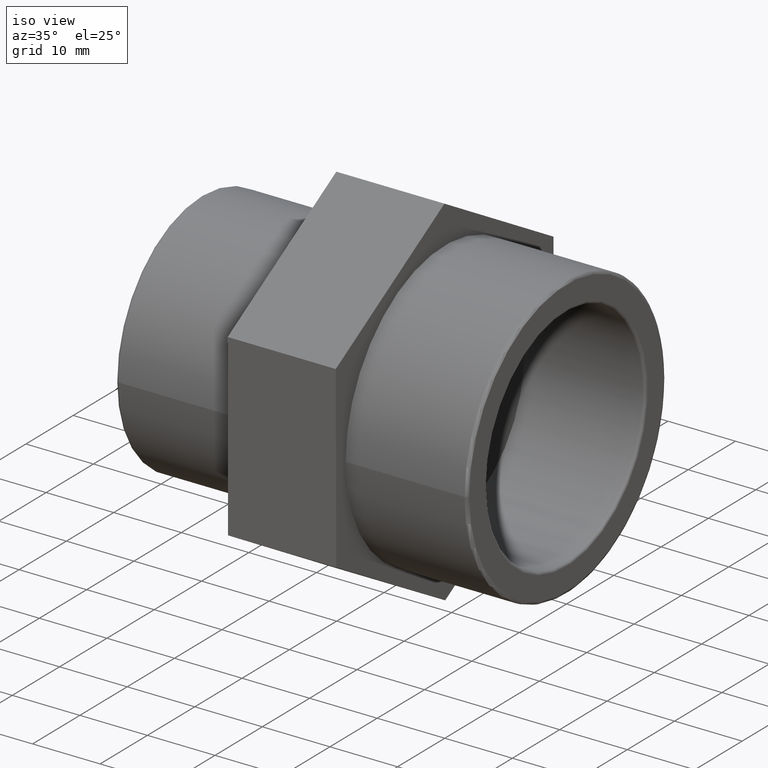
[diagram: clean part render]
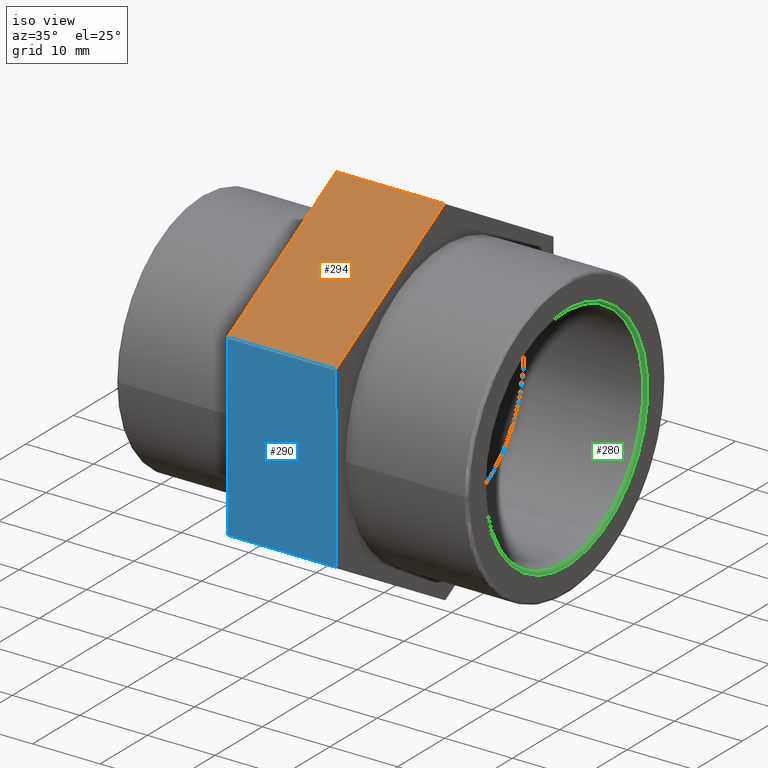
[diagram: same view with three faces highlighted in distinct colors, each labeled with its STEP entity id]
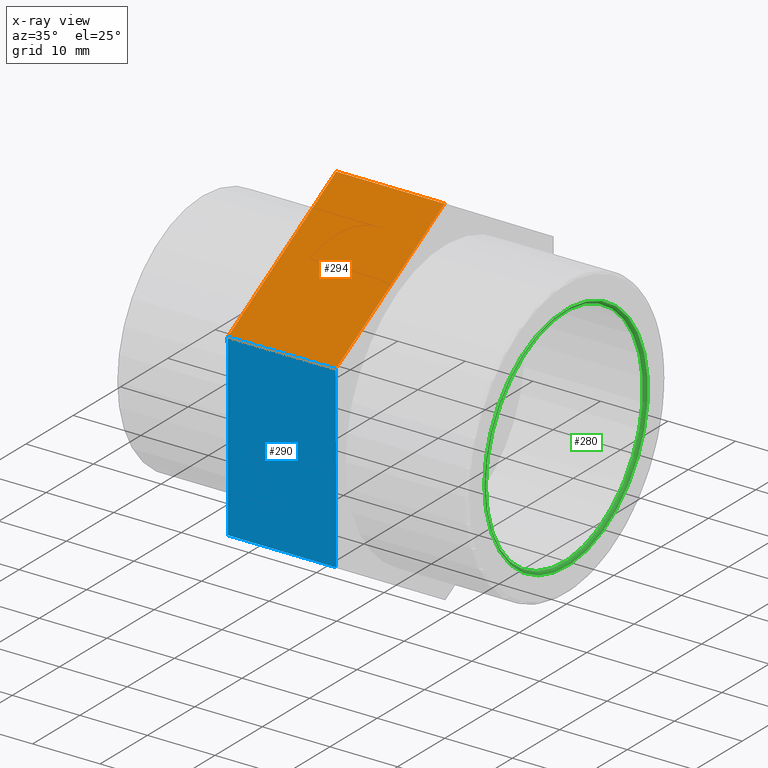
[diagram: x-ray of the same camera — body ghosted, the three highlighted faces saturated]
A machine part, iso view with three faces highlighted in distinct colors.
The next image is the same camera in x-ray (body ghosted, the three faces saturated) — at least one of them is partly hidden behind the body in this view.
Their STEP definitions:

[orange] entity #294 — the highlighted planar face has unit normal (0, -0.5026, 0.8645).
#18=LINE('',#471,#36);
#26=LINE('',#489,#44);
#29=LINE('',#494,#47);
#30=LINE('',#495,#48);
#36=VECTOR('',#389,16.);
#44=VECTOR('',#403,16.);
#47=VECTOR('',#408,26.5581123827228);
#48=VECTOR('',#409,26.5581123827228);
#62=PLANE('',#329);
#97=FACE_OUTER_BOUND('',#128,.T.);
#128=EDGE_LOOP('',(#248,#249,#250,#251));
#166=VERTEX_POINT('',#464);
#169=VERTEX_POINT('',#469);
#175=VERTEX_POINT('',#486);
#176=VERTEX_POINT('',#488);
#195=EDGE_CURVE('',#169,#166,#18,.T.);
#203=EDGE_CURVE('',#176,#175,#26,.T.);
#206=EDGE_CURVE('',#175,#166,#29,.T.);
#207=EDGE_CURVE('',#169,#176,#30,.T.);
#248=ORIENTED_EDGE('',*,*,#206,.T.);
#249=ORIENTED_EDGE('',*,*,#195,.F.);
#250=ORIENTED_EDGE('',*,*,#207,.T.);
#251=ORIENTED_EDGE('',*,*,#203,.T.);
#294=ADVANCED_FACE('',(#97),#62,.T.);
#329=AXIS2_PLACEMENT_3D('',#493,#406,#407);
#389=DIRECTION('',(-1.,-1.85037170770859E-16,0.));
#403=DIRECTION('',(-1.,-1.85037170770859E-16,0.));
#406=DIRECTION('center_axis',(9.29930274188912E-17,-0.502564036358129,0.864539987137336));
#407=DIRECTION('ref_axis',(-1.77635683940025E-16,0.864539987137336,0.502564036358129));
#408=DIRECTION('',(1.58813419197395E-16,-0.864539987137336,-0.502564036358129));
#409=DIRECTION('',(-1.58813419197395E-16,0.864539987137336,0.502564036358129));
#464=CARTESIAN_POINT('',(-6.99999999999999,-23.0392479051125,13.2108436256018));
#469=CARTESIAN_POINT('',(9.00000000000001,-23.0392479051125,13.2108436256018));
#471=CARTESIAN_POINT('',(9.00000000000001,-23.0392479051125,13.2108436256018));
#486=CARTESIAN_POINT('',(-6.99999999999999,-0.0786977673614323,26.5579957827157));
#488=CARTESIAN_POINT('',(9.00000000000001,-0.0786977673614294,26.5579957827157));
#489=CARTESIAN_POINT('',(9.00000000000001,-0.0786977673614294,26.5579957827157));
#493=CARTESIAN_POINT('Origin',(9.00000000000001,-23.0392479051125,13.2108436256018));
#494=CARTESIAN_POINT('',(-6.99999999999999,-17.2991103706747,16.5476316648802));
#495=CARTESIAN_POINT('',(9.00000000000001,-23.0392479051125,13.2108436256018));

[blue] entity #290 — the highlighted planar face has unit normal (0, -1, -0.003).
#15=LINE('',#466,#33);
#16=LINE('',#468,#34);
#17=LINE('',#470,#35);
#18=LINE('',#471,#36);
#33=VECTOR('',#386,26.5581123827228);
#34=VECTOR('',#387,16.);
#35=VECTOR('',#388,26.5581123827228);
#36=VECTOR('',#389,16.);
#58=PLANE('',#325);
#93=FACE_OUTER_BOUND('',#124,.T.);
#124=EDGE_LOOP('',(#232,#233,#234,#235));
#166=VERTEX_POINT('',#464);
#167=VERTEX_POINT('',#465);
#168=VERTEX_POINT('',#467);
#169=VERTEX_POINT('',#469);
#192=EDGE_CURVE('',#166,#167,#15,.T.);
#193=EDGE_CURVE('',#168,#167,#16,.T.);
#194=EDGE_CURVE('',#168,#169,#17,.T.);
#195=EDGE_CURVE('',#169,#166,#18,.T.);
#232=ORIENTED_EDGE('',*,*,#192,.T.);
#233=ORIENTED_EDGE('',*,*,#193,.F.);
#234=ORIENTED_EDGE('',*,*,#194,.T.);
#235=ORIENTED_EDGE('',*,*,#195,.T.);
#290=ADVANCED_FACE('',(#93),#58,.T.);
#325=AXIS2_PLACEMENT_3D('',#463,#384,#385);
#384=DIRECTION('center_axis',(1.85036358388747E-16,-0.999995609627469,-0.00296322894591771));
#385=DIRECTION('ref_axis',(0.,-0.00296322894591761,0.999995609627469));
#386=DIRECTION('',(-5.44336326563836E-19,0.00296322894591771,-0.999995609627469));
#387=DIRECTION('',(-1.,-1.85037170770859E-16,0.));
#388=DIRECTION('',(5.44336326563836E-19,-0.00296322894591771,0.999995609627469));
#389=DIRECTION('',(-1.,-1.85037170770859E-16,0.));
#463=CARTESIAN_POINT('Origin',(9.00000000000001,-22.9605501377511,-13.347152157114));
#464=CARTESIAN_POINT('',(-6.99999999999999,-23.0392479051125,13.2108436256018));
#465=CARTESIAN_POINT('',(-6.99999999999999,-22.9605501377511,-13.347152157114));
#466=CARTESIAN_POINT('',(-6.99999999999999,-22.9802245795915,-6.70765321143507));
#467=CARTESIAN_POINT('',(9.00000000000001,-22.9605501377511,-13.347152157114));
#468=CARTESIAN_POINT('',(9.00000000000001,-22.9605501377511,-13.347152157114));
#469=CARTESIAN_POINT('',(9.00000000000001,-23.0392479051125,13.2108436256018));
#470=CARTESIAN_POINT('',(9.00000000000001,-22.9605501377511,-13.347152157114));
#471=CARTESIAN_POINT('',(9.00000000000001,-23.0392479051125,13.2108436256018));

[green] entity #280 — the highlighted toroidal blend (fillet) surface has major radius 17.1831 mm and minor (blend) radius 0.4191 mm.
#68=FACE_BOUND('',#105,.T.);
#83=FACE_OUTER_BOUND('',#104,.T.);
#104=EDGE_LOOP('',(#212));
#105=EDGE_LOOP('',(#213));
#140=CIRCLE('',#304,16.764);
#141=CIRCLE('',#305,17.1831);
#154=VERTEX_POINT('',#430);
#155=VERTEX_POINT('',#432);
#180=EDGE_CURVE('',#154,#154,#140,.T.);
#181=EDGE_CURVE('',#155,#155,#141,.T.);
#212=ORIENTED_EDGE('',*,*,#180,.T.);
#213=ORIENTED_EDGE('',*,*,#181,.T.);
#276=TOROIDAL_SURFACE('',#303,17.1831,0.4191);
#280=ADVANCED_FACE('',(#83,#68),#276,.T.);
#303=AXIS2_PLACEMENT_3D('',#429,#340,#341);
#304=AXIS2_PLACEMENT_3D('',#431,#342,#343);
#305=AXIS2_PLACEMENT_3D('',#433,#344,#345);
#340=DIRECTION('center_axis',(-1.,-1.83697019872103E-16,0.));
#341=DIRECTION('ref_axis',(0.,0.,1.));
#342=DIRECTION('center_axis',(-1.,-1.83697019872103E-16,0.));
#343=DIRECTION('ref_axis',(-1.82123199577617E-16,1.,6.12323399573677E-17));
#344=DIRECTION('center_axis',(1.,1.83697019872103E-16,0.));
#345=DIRECTION('ref_axis',(-1.83697019872103E-16,1.,6.12323399573677E-17));
#429=CARTESIAN_POINT('Origin',(26.5809,9.84265165206516E-15,0.));
#430=CARTESIAN_POINT('',(26.5809,-16.764,1.02649894704531E-15));
#431=CARTESIAN_POINT('Origin',(26.5809,9.84265165206516E-15,0.));
#432=CARTESIAN_POINT('',(27.,-17.1831,-3.15648426216433E-15));
#433=CARTESIAN_POINT('Origin',(27.,9.91963907309356E-15,0.));